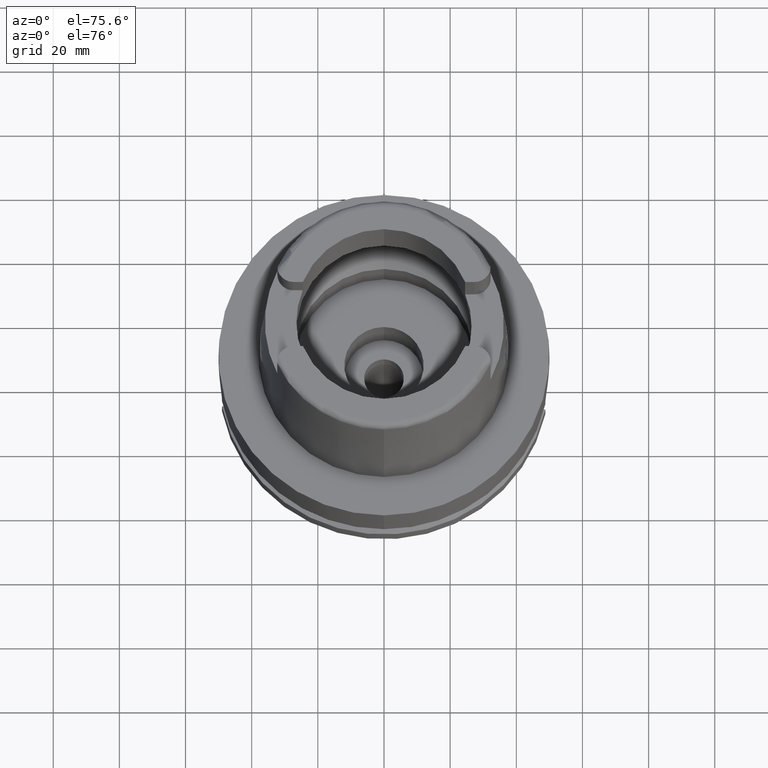
[diagram: clean part render]
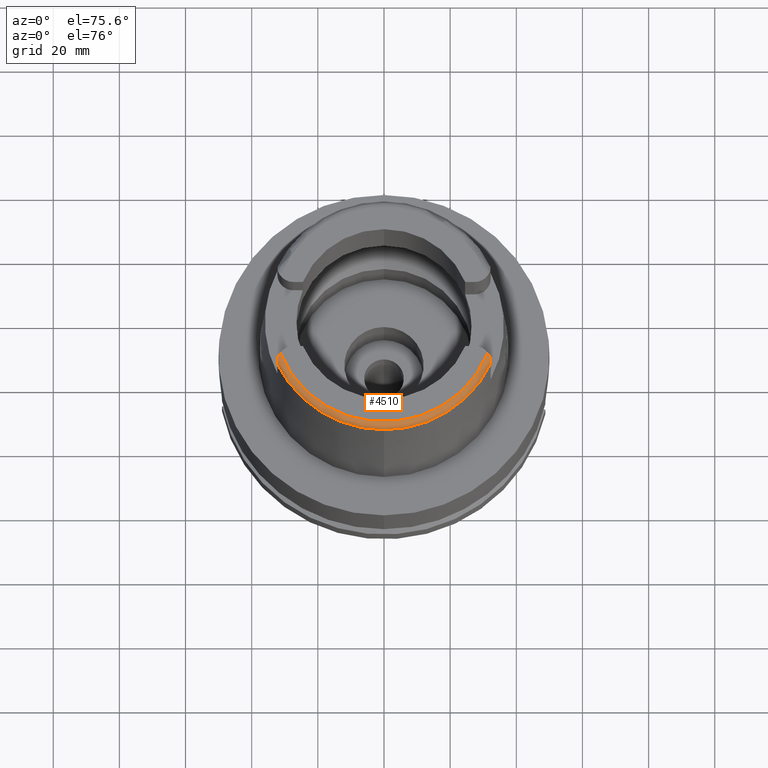
[diagram: same view with one face highlighted and labeled with its STEP entity id]
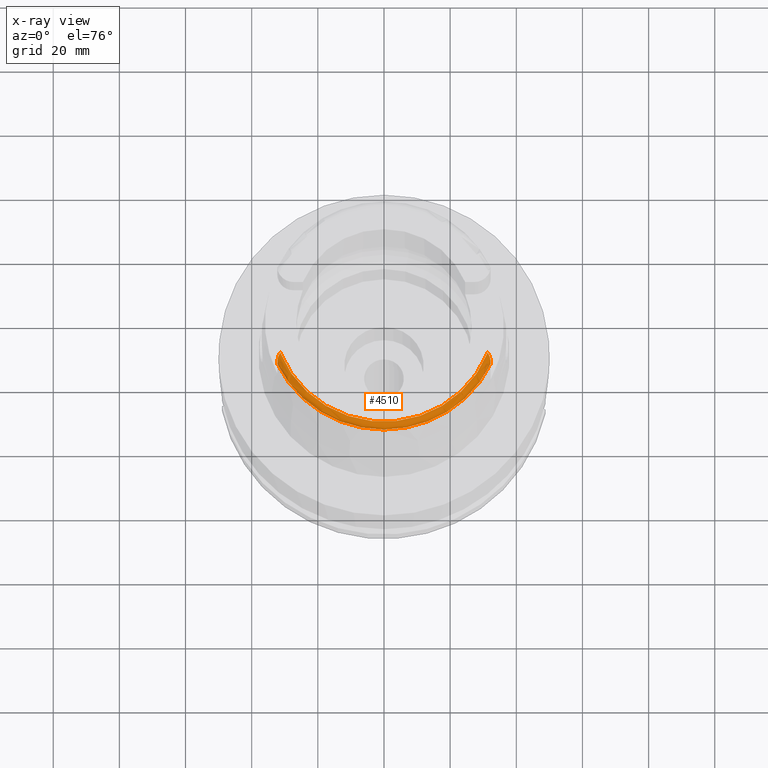
[diagram: x-ray of the same camera — body ghosted, the highlighted face saturated]
A machine part, auxiliary view. The second image highlights one B-rep face of the part: STEP entity #4510.
The next image is the same camera in x-ray: the body ghosted, the highlighted face saturated — about 0% of this face is hidden behind the body in this view.
In plain terms, the highlighted toroidal blend (fillet) surface has major radius 33.5974 mm and minor (blend) radius 2 mm.
Its self-contained STEP definition (entity closure, byte-faithful):
#15 = CARTESIAN_POINT ( 'NONE',  ( 31.68011789534812195, -12.57895600000901659, 49.95564256540176018 ) ) ;
#156 = VERTEX_POINT ( 'NONE', #2154 ) ;
#160 = DIRECTION ( 'NONE',  ( 0.0000000000000000000, 0.0000000000000000000, -1.000000000000000000 ) ) ;
#245 = B_SPLINE_CURVE_WITH_KNOTS ( 'NONE', 3,
 ( #3753, #1208, #3367, #4119, #2485, #2912, #732, #5530, #2097, #5497, #3813, #5094, #318, #376, #350, #3247, #2402, #1619, #793, #2063, #2017, #4149, #5557, #1982, #764, #4611, #1235, #4977, #3307 ),
 .UNSPECIFIED., .F., .F.,
 ( 4, 2, 2, 2, 2, 2, 2, 1, 2, 2, 1, 1, 2, 2, 2, 4 ),
 ( 0.0000000000000000000, 0.1249999999999854283, 0.1874999999999787947, 0.2187499999999782119, 0.2499999999999776290, 0.3749999999999734657, 0.4374999999999709677, 0.4687499999999702460, 0.4843749999999698574, 0.4999999999999694689, 0.5624999999999703570, 0.5937499999999691358, 0.6093749999999700240, 0.6249999999999710232, 0.7499999999999804601, 1.000000000000000000 ),
 .UNSPECIFIED. ) ;
#314 = B_SPLINE_CURVE_WITH_KNOTS ( 'NONE', 3,
 ( #2889, #5103, #15, #2070, #4621, #2549, #5071, #2945, #4282, #1216, #3346, #1716, #4676, #884, #4218, #2519, #383, #5538, #1689, #1746, #3458, #5194, #4704, #3433, #773, #3760 ),
 .UNSPECIFIED., .F., .F.,
 ( 4, 2, 1, 1, 2, 2, 1, 1, 2, 2, 2, 2, 2, 2, 4 ),
 ( 0.0000000000000000000, 0.2499999999999716893, 0.3124999999999635292, 0.3437499999999616973, 0.3593749999999614197, 0.3749999999999611422, 0.4374999999999600320, 0.4687499999999600875, 0.4843749999999583111, 0.4999999999999564793, 0.6249999999999662492, 0.6874999999999716893, 0.7187499999999736877, 0.7499999999999756861, 1.000000000000000000 ),
 .UNSPECIFIED. ) ;
#318 = CARTESIAN_POINT ( 'NONE',  ( -32.16824261117820782, -13.99829811155681192, 49.34150814064089730 ) ) ;
#350 = CARTESIAN_POINT ( 'NONE',  ( -32.14036608212511936, -13.86053090548380773, 49.42467240056318900 ) ) ;
#376 = CARTESIAN_POINT ( 'NONE',  ( -32.15003907209793965, -13.90684560082770638, 49.39716775167509866 ) ) ;
#383 = CARTESIAN_POINT ( 'NONE',  ( 32.16968656921653746, -14.00053999821851036, 49.34201503944926515 ) ) ;
#505 = EDGE_CURVE ( 'NONE', #648, #2607, #2250, .T. ) ;
#548 = CARTESIAN_POINT ( 'NONE',  ( -32.25000000000000000, -14.98833473111821490, 48.40074416427982840 ) ) ;
#648 = VERTEX_POINT ( 'NONE', #3970 ) ;
#732 = CARTESIAN_POINT ( 'NONE',  ( -32.23707818892637533, -14.53437786799359266, 48.94162312119402714 ) ) ;
#764 = CARTESIAN_POINT ( 'NONE',  ( -31.93908553067195655, -13.16829785809643560, 49.76472228675617515 ) ) ;
#773 = CARTESIAN_POINT ( 'NONE',  ( 32.25000000000000711, -14.78365417764212530, 48.70308726509250619 ) ) ;
#793 = CARTESIAN_POINT ( 'NONE',  ( -32.09803448346549004, -13.67949630128837057, 49.52618487258911273 ) ) ;
#817 = DIRECTION ( 'NONE',  ( 0.9060280460804950309, -0.4232176505245974218, 0.0000000000000000000 ) ) ;
#884 = CARTESIAN_POINT ( 'NONE',  ( 32.10641621804439438, -13.71480131001957403, 49.50653950872187892 ) ) ;
#894 = EDGE_CURVE ( 'NONE', #2637, #4840, #1633, .T. ) ;
#967 = CARTESIAN_POINT ( 'NONE',  ( 0.0000000000000000000, 0.0000000000000000000, 48.09987853799000135 ) ) ;
#1059 = CARTESIAN_POINT ( 'NONE',  ( 32.25000552016999222, -15.06439826232000101, 48.10004192737000039 ) ) ;
#1208 = CARTESIAN_POINT ( 'NONE',  ( -32.25000000000000000, -14.83671057269678073, 48.62471521300824406 ) ) ;
#1216 = CARTESIAN_POINT ( 'NONE',  ( 32.01596044020715226, -13.39493652546694946, 49.66623837779415140 ) ) ;
#1235 = CARTESIAN_POINT ( 'NONE',  ( -31.68061155684213404, -12.58014796656907031, 49.95521820188803730 ) ) ;
#1324 = CARTESIAN_POINT ( 'NONE',  ( -32.25000000000000000, -14.89000000000000057, 48.54599893821999501 ) ) ;
#1385 = VERTEX_POINT ( 'NONE', #1958 ) ;
#1400 = CARTESIAN_POINT ( 'NONE',  ( 0.0000000000000000000, 0.0000000000000000000, 48.00000000000000000 ) ) ;
#1440 = EDGE_CURVE ( 'NONE', #4987, #648, #3079, .T. ) ;
#1464 = DIRECTION ( 'NONE',  ( 0.0000000000000000000, -1.000000000000000000, 0.0000000000000000000 ) ) ;
#1520 = CARTESIAN_POINT ( 'NONE',  ( 0.0000000000000000000, 0.0000000000000000000, 50.00000000000000000 ) ) ;
#1619 = CARTESIAN_POINT ( 'NONE',  ( -32.11915424337008318, -13.76738661919180373, 49.47761942814413061 ) ) ;
#1633 = CIRCLE ( 'NONE', #3511, 33.59743838135999994 ) ;
#1689 = CARTESIAN_POINT ( 'NONE',  ( 32.20551228661496879, -14.23027610190216308, 49.18544855313385966 ) ) ;
#1705 = CARTESIAN_POINT ( 'NONE',  ( -31.35385269249000473, -12.07161079256999869, 50.00000000000000000 ) ) ;
#1716 = CARTESIAN_POINT ( 'NONE',  ( 32.08385868040468125, -13.62656215054855657, 49.55353690357542717 ) ) ;
#1746 = CARTESIAN_POINT ( 'NONE',  ( 32.21572690003335993, -14.31199958112078718, 49.12444670696469728 ) ) ;
#1898 = AXIS2_PLACEMENT_3D ( 'NONE', #1400, #4807, #4252 ) ;
#1952 = EDGE_LOOP ( 'NONE', ( #3034, #4691, #2748, #5542, #4509, #2930, #4393 ) ) ;
#1958 = CARTESIAN_POINT ( 'NONE',  ( -32.25000000000000000, -14.89000000000000057, 48.54599893821999501 ) ) ;
#1982 = CARTESIAN_POINT ( 'NONE',  ( -31.99781301689094803, -13.34140089306247567, 49.68950425211233579 ) ) ;
#2017 = CARTESIAN_POINT ( 'NONE',  ( -32.03235584889808507, -13.44801711243666453, 49.64139786745818839 ) ) ;
#2063 = CARTESIAN_POINT ( 'NONE',  ( -32.07001232242313193, -13.57320080905115489, 49.58164030106662068 ) ) ;
#2070 = CARTESIAN_POINT ( 'NONE',  ( 31.84652049609844227, -12.94535561397037604, 49.84291444875637467 ) ) ;
#2097 = CARTESIAN_POINT ( 'NONE',  ( -32.23171537253229246, -14.46717890837750353, 49.00009114779017239 ) ) ;
#2154 = CARTESIAN_POINT ( 'NONE',  ( 32.25000000000000000, -14.89000000000000057, 48.54599893821999501 ) ) ;
#2172 = TOROIDAL_SURFACE ( 'NONE', #1898, 33.59743838135999994, 2.000000000000000000 ) ;
#2191 = EDGE_CURVE ( 'NONE', #2637, #156, #314, .T. ) ;
#2250 = CIRCLE ( 'NONE', #4146, 35.59494289391000166 ) ;
#2289 = EDGE_CURVE ( 'NONE', #156, #4987, #4326, .T. ) ;
#2402 = CARTESIAN_POINT ( 'NONE',  ( -32.12251371900618580, -13.78172352244355103, 49.46959220492766462 ) ) ;
#2475 = CARTESIAN_POINT ( 'NONE',  ( 32.25000000000000000, -15.04642710288585228, 48.25215147793513637 ) ) ;
#2485 = CARTESIAN_POINT ( 'NONE',  ( -32.24273785142021609, -14.62045029757826420, 48.86215423255158186 ) ) ;
#2486 = CARTESIAN_POINT ( 'NONE',  ( 0.0000000000000000000, 0.0000000000000000000, 48.09987853799000135 ) ) ;
#2519 = CARTESIAN_POINT ( 'NONE',  ( 32.14578292584812402, -13.87822137027852776, 49.41637357323408253 ) ) ;
#2549 = CARTESIAN_POINT ( 'NONE',  ( 31.94431657850744344, -13.18914649109124326, 49.75363490507520225 ) ) ;
#2607 = VERTEX_POINT ( 'NONE', #5069 ) ;
#2610 = CARTESIAN_POINT ( 'NONE',  ( -32.25000000000000000, -15.04649635340821590, 48.25198855894983296 ) ) ;
#2637 = VERTEX_POINT ( 'NONE', #3870 ) ;
#2748 = ORIENTED_EDGE ( 'NONE', *, *, #2289, .F. ) ;
#2877 = DIRECTION ( 'NONE',  ( 0.0000000000000000000, 0.0000000000000000000, -1.000000000000000000 ) ) ;
#2882 = EDGE_CURVE ( 'NONE', #1385, #4840, #245, .T. ) ;
#2889 = CARTESIAN_POINT ( 'NONE',  ( 31.35385269249000473, -12.07161079256999869, 50.00000000000000000 ) ) ;
#2912 = CARTESIAN_POINT ( 'NONE',  ( -32.23863061666758512, -14.55639286408735167, 48.92174437943361909 ) ) ;
#2930 = ORIENTED_EDGE ( 'NONE', *, *, #2882, .F. ) ;
#2945 = CARTESIAN_POINT ( 'NONE',  ( 31.97842579420118270, -13.28462677991073981, 49.71404415307628000 ) ) ;
#3034 = ORIENTED_EDGE ( 'NONE', *, *, #505, .F. ) ;
#3048 = CARTESIAN_POINT ( 'NONE',  ( -32.24999491821000674, -15.06448486686999821, 48.09973212223000161 ) ) ;
#3055 = B_SPLINE_CURVE_WITH_KNOTS ( 'NONE', 3,
 ( #3048, #2610, #548, #1324 ),
 .UNSPECIFIED., .F., .F.,
 ( 4, 4 ),
 ( 0.0000000000000000000, 1.000000000000000000 ),
 .UNSPECIFIED. ) ;
#3079 = CIRCLE ( 'NONE', #3261, 35.59494289391000166 ) ;
#3247 = CARTESIAN_POINT ( 'NONE',  ( -32.12978018349593157, -13.81335892478210781, 49.45168931450768213 ) ) ;
#3261 = AXIS2_PLACEMENT_3D ( 'NONE', #2486, #2877, #817 ) ;
#3307 = CARTESIAN_POINT ( 'NONE',  ( -31.35385269249000473, -12.07161079256999869, 50.00000000000000000 ) ) ;
#3346 = CARTESIAN_POINT ( 'NONE',  ( 32.04956885231850805, -13.50233662480487951, 49.61651650191738838 ) ) ;
#3367 = CARTESIAN_POINT ( 'NONE',  ( -32.24916247189778318, -14.77264751291601286, 48.70367723925907910 ) ) ;
#3412 = CARTESIAN_POINT ( 'NONE',  ( 32.25000552016999222, -15.06439826232000101, 48.10004192737000039 ) ) ;
#3433 = CARTESIAN_POINT ( 'NONE',  ( 32.24707799983736578, -14.63427149744680733, 48.86114111583057706 ) ) ;
#3458 = CARTESIAN_POINT ( 'NONE',  ( 32.21884486965520011, -14.33881272500456916, 49.10389471883205204 ) ) ;
#3511 = AXIS2_PLACEMENT_3D ( 'NONE', #1520, #4128, #5391 ) ;
#3753 = CARTESIAN_POINT ( 'NONE',  ( -32.25000000000000000, -14.89000000000000057, 48.54599893821999501 ) ) ;
#3760 = CARTESIAN_POINT ( 'NONE',  ( 32.25000000000000000, -14.89000000000000057, 48.54599893821999501 ) ) ;
#3766 = CARTESIAN_POINT ( 'NONE',  ( 32.25000000000000000, -14.89000000000000057, 48.54599893821999501 ) ) ;
#3813 = CARTESIAN_POINT ( 'NONE',  ( -32.20670727330088567, -14.23094902007207629, 49.18701292080748289 ) ) ;
#3870 = CARTESIAN_POINT ( 'NONE',  ( 31.35385269249000473, -12.07161079256999869, 50.00000000000000000 ) ) ;
#3882 = CARTESIAN_POINT ( 'NONE',  ( 32.25000000000000000, -14.98829434877918487, 48.40080381488512984 ) ) ;
#3970 = CARTESIAN_POINT ( 'NONE',  ( 1.065814103639999922E-14, -35.59494289391000166, 48.09987853799000135 ) ) ;
#4119 = CARTESIAN_POINT ( 'NONE',  ( -32.24474423185030503, -14.66050450463641397, 48.82248890582923195 ) ) ;
#4128 = DIRECTION ( 'NONE',  ( 0.0000000000000000000, 0.0000000000000000000, -1.000000000000000000 ) ) ;
#4146 = AXIS2_PLACEMENT_3D ( 'NONE', #967, #160, #1464 ) ;
#4149 = CARTESIAN_POINT ( 'NONE',  ( -32.01512483407994125, -13.39414809176087928, 49.66594958873340460 ) ) ;
#4218 = CARTESIAN_POINT ( 'NONE',  ( 32.11111671161805248, -13.73393591044191986, 49.49610221436910251 ) ) ;
#4252 = DIRECTION ( 'NONE',  ( -0.0004184165975219878483, -0.9999999124637716230, 0.0000000000000000000 ) ) ;
#4282 = CARTESIAN_POINT ( 'NONE',  ( 31.98548991728193513, -13.30506687088317186, 49.70530625380933998 ) ) ;
#4326 = B_SPLINE_CURVE_WITH_KNOTS ( 'NONE', 3,
 ( #3766, #3882, #2475, #3412 ),
 .UNSPECIFIED., .F., .F.,
 ( 4, 4 ),
 ( 0.0000000000000000000, 1.000000000000000000 ),
 .UNSPECIFIED. ) ;
#4393 = ORIENTED_EDGE ( 'NONE', *, *, #4793, .F. ) ;
#4509 = ORIENTED_EDGE ( 'NONE', *, *, #894, .T. ) ;
#4510 = ADVANCED_FACE ( 'NONE', ( #5106 ), #2172, .T. ) ;
#4611 = CARTESIAN_POINT ( 'NONE',  ( -31.87914390695998534, -13.01713632933223508, 49.82087280755217051 ) ) ;
#4621 = CARTESIAN_POINT ( 'NONE',  ( 31.89383791059818662, -13.05676714757669998, 49.80500930707465557 ) ) ;
#4676 = CARTESIAN_POINT ( 'NONE',  ( 32.09752814422388667, -13.67954215395304018, 49.52548048789621760 ) ) ;
#4691 = ORIENTED_EDGE ( 'NONE', *, *, #1440, .F. ) ;
#4704 = CARTESIAN_POINT ( 'NONE',  ( 32.22728746659582555, -14.41911272643426756, 49.04003791225963482 ) ) ;
#4793 = EDGE_CURVE ( 'NONE', #2607, #1385, #3055, .T. ) ;
#4807 = DIRECTION ( 'NONE',  ( 0.0000000000000000000, 0.0000000000000000000, 1.000000000000000000 ) ) ;
#4840 = VERTEX_POINT ( 'NONE', #1705 ) ;
#4977 = CARTESIAN_POINT ( 'NONE',  ( -31.52467575631654739, -12.31307280249384029, 49.99999999999997158 ) ) ;
#4987 = VERTEX_POINT ( 'NONE', #1059 ) ;
#5069 = CARTESIAN_POINT ( 'NONE',  ( -32.24999491821000674, -15.06448486686999821, 48.09973212223000161 ) ) ;
#5071 = CARTESIAN_POINT ( 'NONE',  ( 31.96492054232423641, -13.24637087937538205, 49.73008478921026665 ) ) ;
#5094 = CARTESIAN_POINT ( 'NONE',  ( -32.17885556138234193, -14.05769623922597589, 49.30353464894065496 ) ) ;
#5103 = CARTESIAN_POINT ( 'NONE',  ( 31.52481234492591256, -12.31326587337904854, 50.00000000000000000 ) ) ;
#5106 = FACE_OUTER_BOUND ( 'NONE', #1952, .T. ) ;
#5194 = CARTESIAN_POINT ( 'NONE',  ( 32.22455165890673356, -14.39157029271482813, 49.06235466374750587 ) ) ;
#5391 = DIRECTION ( 'NONE',  ( 0.9332215253017949186, -0.3593015233941980191, 0.0000000000000000000 ) ) ;
#5497 = CARTESIAN_POINT ( 'NONE',  ( -32.21996887742226079, -14.33984864570056317, 49.10586343134228571 ) ) ;
#5530 = CARTESIAN_POINT ( 'NONE',  ( -32.23355228939417572, -14.48903076648663735, 48.98141132364770556 ) ) ;
#5538 = CARTESIAN_POINT ( 'NONE',  ( 32.19755551269771843, -14.17408077537085909, 49.22524429294152526 ) ) ;
#5542 = ORIENTED_EDGE ( 'NONE', *, *, #2191, .F. ) ;
#5557 = CARTESIAN_POINT ( 'NONE',  ( -32.00339153917864365, -13.35819044909736242, 49.68208214417882829 ) ) ;